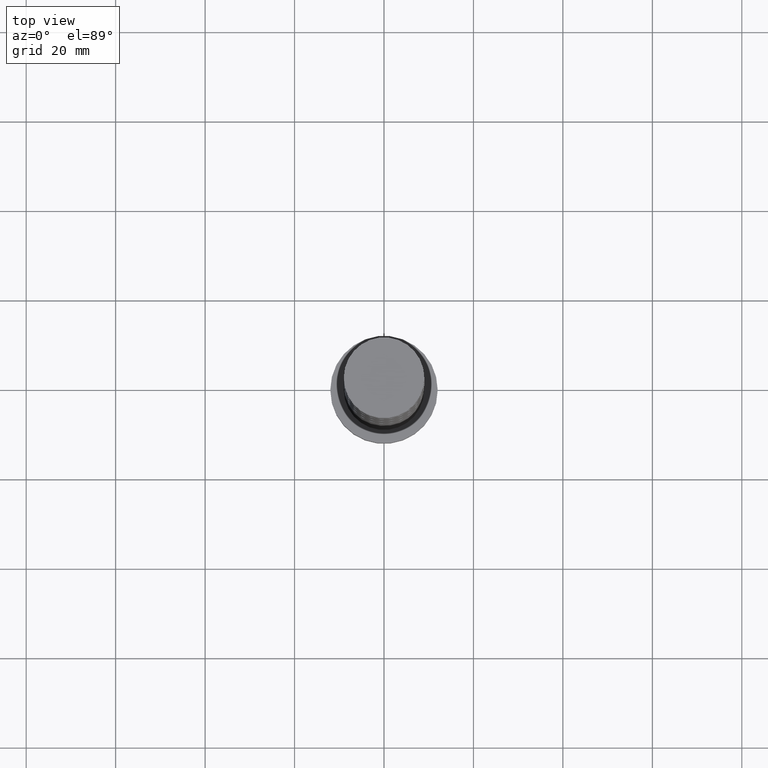
[diagram: clean part render]
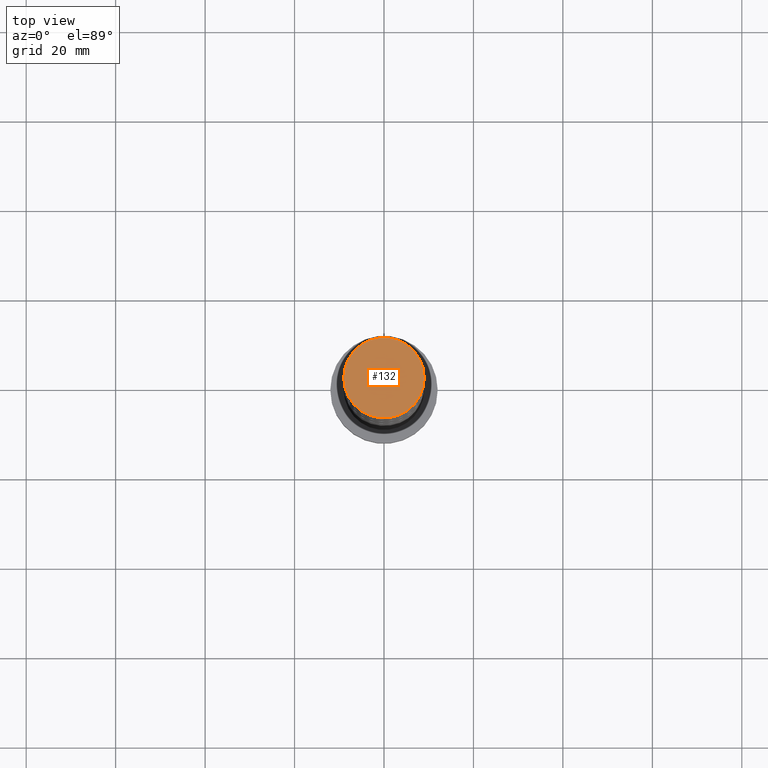
[diagram: same view with one face highlighted and labeled with its STEP entity id]
A machine part, top view. The second image highlights one B-rep face of the part: STEP entity #132.
In plain terms, the highlighted planar face has unit normal (0, 0, 1).
Its self-contained STEP definition (entity closure, byte-faithful):
#21 = CIRCLE ( 'NONE', #1016, 9.000000000000001776 ) ;
#132 = ADVANCED_FACE ( 'NONE', ( #1465 ), #1195, .T. ) ;
#156 = DIRECTION ( 'NONE',  ( 1.000000000000000000, 0.000000000000000000, -0.000000000000000000 ) ) ;
#212 = AXIS2_PLACEMENT_3D ( 'NONE', #1227, #1370, #1245 ) ;
#311 = EDGE_CURVE ( 'NONE', #793, #1516, #21, .T. ) ;
#744 = CARTESIAN_POINT ( 'NONE',  ( 9.000000000000001776, 1.102182119232617911E-15, 160.0000000000000000 ) ) ;
#754 = CARTESIAN_POINT ( 'NONE',  ( 0.000000000000000000, 0.000000000000000000, 160.0000000000000000 ) ) ;
#785 = ORIENTED_EDGE ( 'NONE', *, *, #1333, .T. ) ;
#793 = VERTEX_POINT ( 'NONE', #744 ) ;
#857 = AXIS2_PLACEMENT_3D ( 'NONE', #1214, #957, #156 ) ;
#957 = DIRECTION ( 'NONE',  ( 0.000000000000000000, 0.000000000000000000, 1.000000000000000000 ) ) ;
#985 = DIRECTION ( 'NONE',  ( 0.000000000000000000, 0.000000000000000000, 1.000000000000000000 ) ) ;
#1016 = AXIS2_PLACEMENT_3D ( 'NONE', #754, #985, #1398 ) ;
#1158 = EDGE_LOOP ( 'NONE', ( #785, #1621 ) ) ;
#1195 = PLANE ( 'NONE',  #857 ) ;
#1214 = CARTESIAN_POINT ( 'NONE',  ( 0.000000000000000000, 0.000000000000000000, 160.0000000000000000 ) ) ;
#1227 = CARTESIAN_POINT ( 'NONE',  ( 0.000000000000000000, 0.000000000000000000, 160.0000000000000000 ) ) ;
#1245 = DIRECTION ( 'NONE',  ( 1.000000000000000000, 0.000000000000000000, 0.000000000000000000 ) ) ;
#1289 = CARTESIAN_POINT ( 'NONE',  ( -9.000000000000001776, 0.000000000000000000, 160.0000000000000000 ) ) ;
#1333 = EDGE_CURVE ( 'NONE', #1516, #793, #1374, .T. ) ;
#1370 = DIRECTION ( 'NONE',  ( 0.000000000000000000, 0.000000000000000000, 1.000000000000000000 ) ) ;
#1374 = CIRCLE ( 'NONE', #212, 9.000000000000001776 ) ;
#1398 = DIRECTION ( 'NONE',  ( 1.000000000000000000, 0.000000000000000000, 0.000000000000000000 ) ) ;
#1465 = FACE_OUTER_BOUND ( 'NONE', #1158, .T. ) ;
#1516 = VERTEX_POINT ( 'NONE', #1289 ) ;
#1621 = ORIENTED_EDGE ( 'NONE', *, *, #311, .T. ) ;